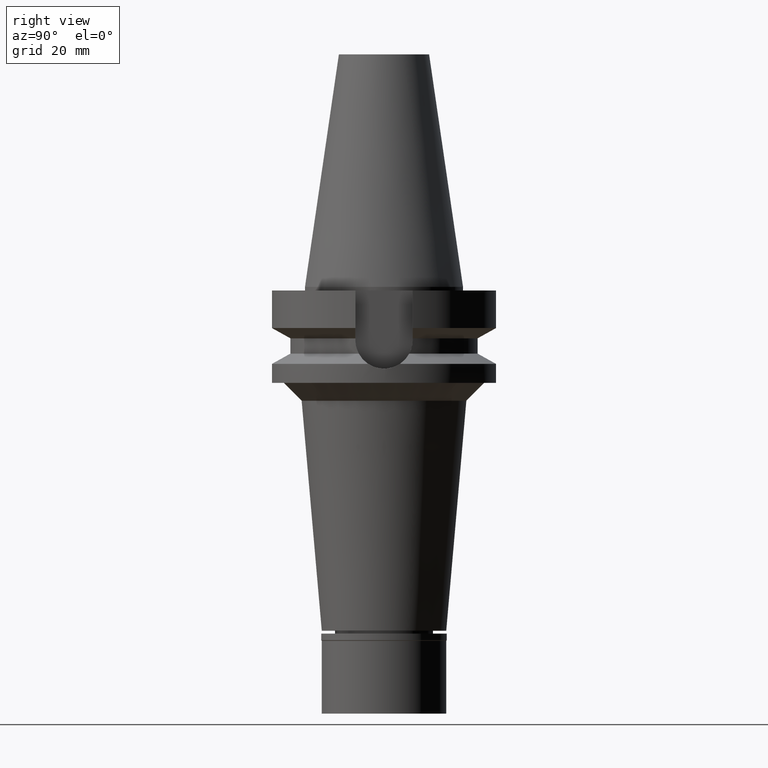
[diagram: clean part render]
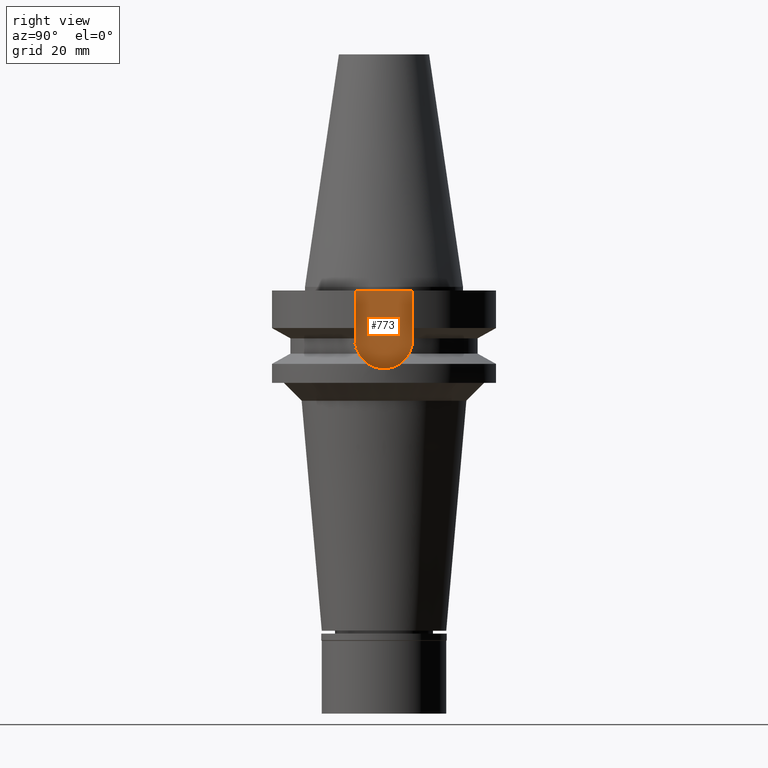
[diagram: same view with one face highlighted and labeled with its STEP entity id]
A machine part, right view. The second image highlights one B-rep face of the part: STEP entity #773.
In plain terms, the highlighted planar face has unit normal (1, 0, 0).
Its self-contained STEP definition (entity closure, byte-faithful):
#9 = ORIENTED_EDGE ( 'NONE', *, *, #2413, .F. ) ;
#208 = CARTESIAN_POINT ( 'NONE',  ( 22.50000000000000000, -8.050000000000000711, -1.000000000000000000 ) ) ;
#286 = CARTESIAN_POINT ( 'NONE',  ( 22.50000000000000000, -8.050000000000000711, -14.94999999999999929 ) ) ;
#468 = ORIENTED_EDGE ( 'NONE', *, *, #1392, .F. ) ;
#498 = CARTESIAN_POINT ( 'NONE',  ( 22.50000000000000000, -8.050000000000000711, -14.94999999999999929 ) ) ;
#536 = PLANE ( 'NONE',  #2693 ) ;
#642 = AXIS2_PLACEMENT_3D ( 'NONE', #3007, #1830, #833 ) ;
#672 = VECTOR ( 'NONE', #917, 1000.000000000000000 ) ;
#773 = ADVANCED_FACE ( 'NONE', ( #1305 ), #536, .T. ) ;
#833 = DIRECTION ( 'NONE',  ( 0.0000000000000000000, 0.0000000000000000000, -1.000000000000000000 ) ) ;
#900 = LINE ( 'NONE', #2842, #672 ) ;
#907 = VECTOR ( 'NONE', #982, 1000.000000000000000 ) ;
#917 = DIRECTION ( 'NONE',  ( 0.0000000000000000000, 0.0000000000000000000, -1.000000000000000000 ) ) ;
#982 = DIRECTION ( 'NONE',  ( 0.0000000000000000000, 0.0000000000000000000, 1.000000000000000000 ) ) ;
#1209 = VECTOR ( 'NONE', #2881, 1000.000000000000000 ) ;
#1285 = CARTESIAN_POINT ( 'NONE',  ( 22.50000000000000000, 0.0000000000000000000, 0.0000000000000000000 ) ) ;
#1305 = FACE_OUTER_BOUND ( 'NONE', #2442, .T. ) ;
#1376 = VERTEX_POINT ( 'NONE', #2597 ) ;
#1392 = EDGE_CURVE ( 'NONE', #2064, #1376, #900, .T. ) ;
#1830 = DIRECTION ( 'NONE',  ( -1.000000000000000000, 0.0000000000000000000, 0.0000000000000000000 ) ) ;
#1910 = EDGE_CURVE ( 'NONE', #2156, #3073, #2840, .T. ) ;
#1932 = CARTESIAN_POINT ( 'NONE',  ( 22.50000000000000000, 8.050000000000000711, -1.000000000000000000 ) ) ;
#1995 = CARTESIAN_POINT ( 'NONE',  ( 22.50000000000000000, 8.050000000000000711, -1.000000000000000000 ) ) ;
#2001 = EDGE_CURVE ( 'NONE', #2064, #3073, #2869, .T. ) ;
#2064 = VERTEX_POINT ( 'NONE', #1995 ) ;
#2156 = VERTEX_POINT ( 'NONE', #286 ) ;
#2413 = EDGE_CURVE ( 'NONE', #1376, #2156, #2722, .T. ) ;
#2442 = EDGE_LOOP ( 'NONE', ( #3005, #9, #468, #2867 ) ) ;
#2485 = DIRECTION ( 'NONE',  ( 0.0000000000000000000, 1.000000000000000000, 0.0000000000000000000 ) ) ;
#2597 = CARTESIAN_POINT ( 'NONE',  ( 22.50000000000000000, 8.050000000000000711, -14.94999999999999929 ) ) ;
#2693 = AXIS2_PLACEMENT_3D ( 'NONE', #1285, #2983, #2485 ) ;
#2722 = CIRCLE ( 'NONE', #642, 8.050000000000000711 ) ;
#2840 = LINE ( 'NONE', #498, #907 ) ;
#2842 = CARTESIAN_POINT ( 'NONE',  ( 22.50000000000000000, 8.050000000000000711, -1.000000000000000000 ) ) ;
#2867 = ORIENTED_EDGE ( 'NONE', *, *, #2001, .T. ) ;
#2869 = LINE ( 'NONE', #1932, #1209 ) ;
#2881 = DIRECTION ( 'NONE',  ( 0.0000000000000000000, -1.000000000000000000, 0.0000000000000000000 ) ) ;
#2983 = DIRECTION ( 'NONE',  ( 1.000000000000000000, 0.0000000000000000000, 0.0000000000000000000 ) ) ;
#3005 = ORIENTED_EDGE ( 'NONE', *, *, #1910, .F. ) ;
#3007 = CARTESIAN_POINT ( 'NONE',  ( 22.50000000000000000, 0.0000000000000000000, -14.94999999999999929 ) ) ;
#3073 = VERTEX_POINT ( 'NONE', #208 ) ;